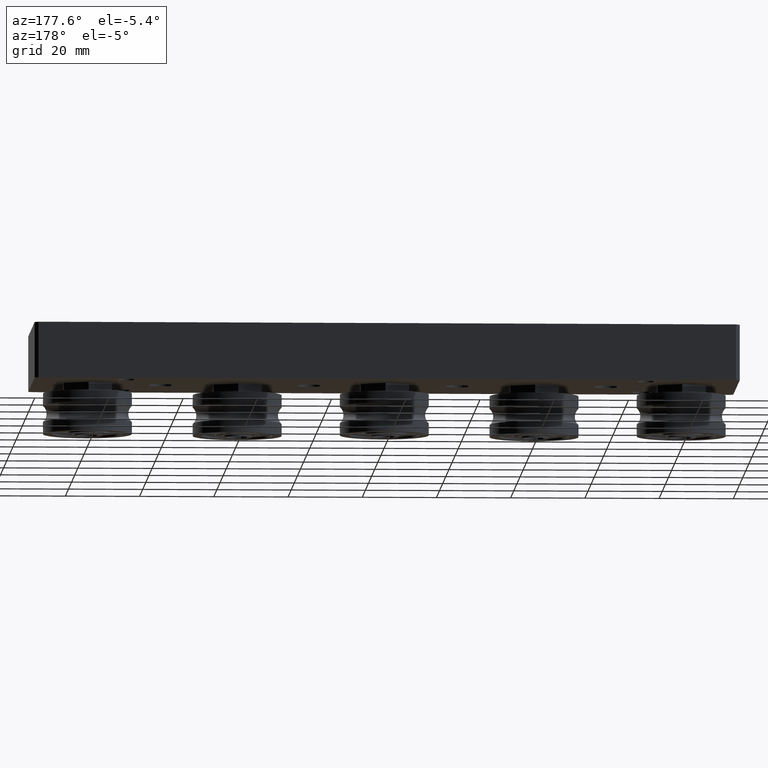
[diagram: clean part render]
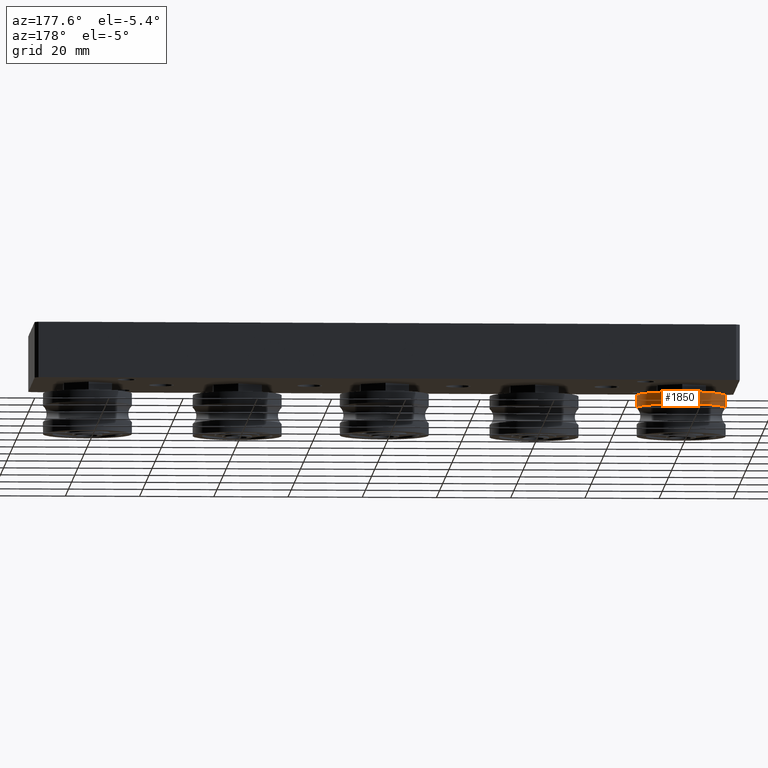
[diagram: same view with one face highlighted and labeled with its STEP entity id]
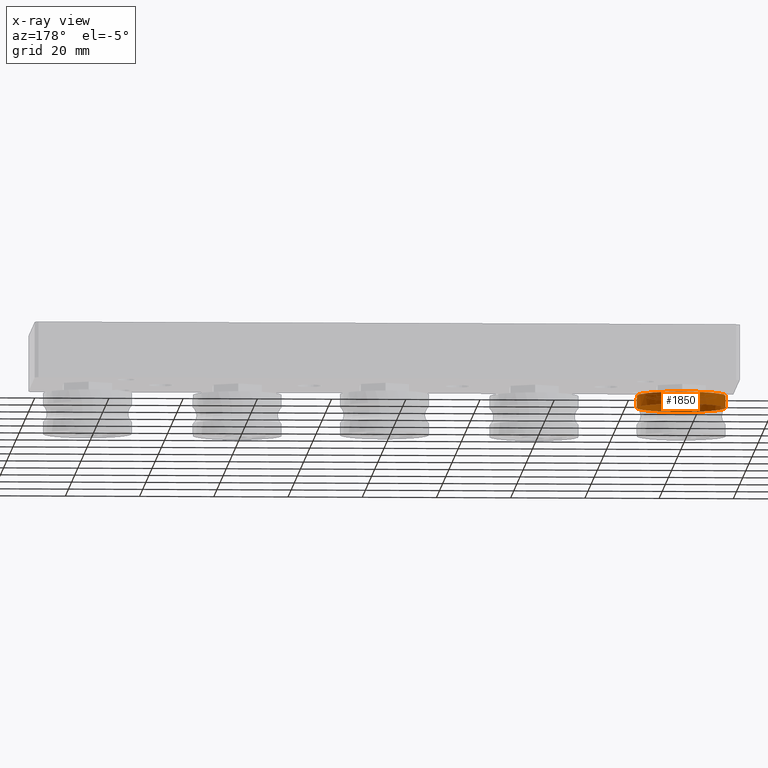
[diagram: x-ray of the same camera — body ghosted, the highlighted face saturated]
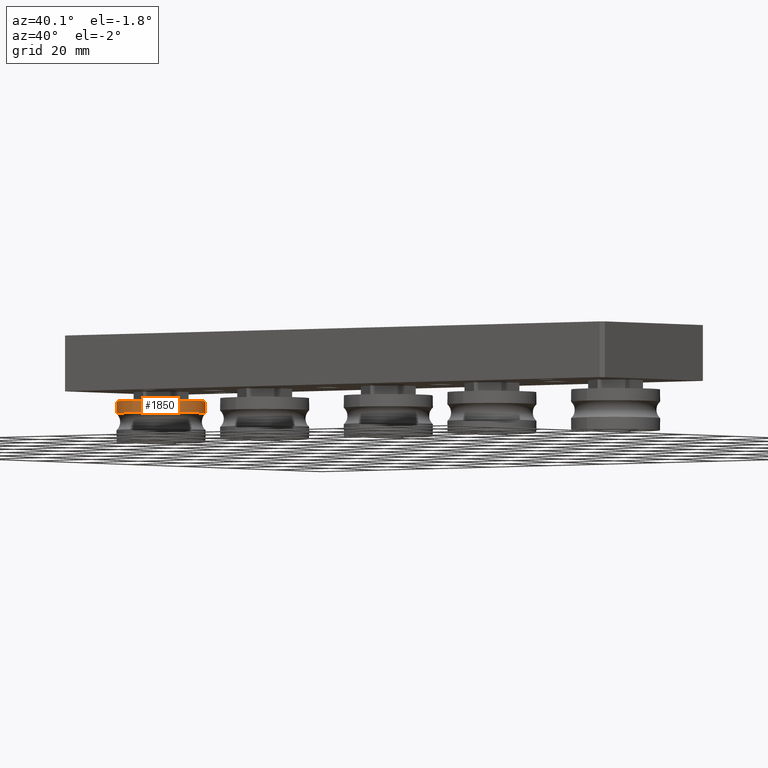
[diagram: same view with one face highlighted and labeled with its STEP entity id]
A machine part, auxiliary view. The second image highlights one B-rep face of the part: STEP entity #1850.
The next image is the same camera in x-ray: the body ghosted, the highlighted face saturated — about 19% of this face is hidden behind the body in this view.
A second angle (auxiliary view) of the same face is appended — the face is thin or edge-on in the first view.
In plain terms, the highlighted cylindrical surface (bore or boss wall) has radius 12 mm, axis along (-0, -0, 1).
Its self-contained STEP definition (entity closure, byte-faithful):
#173=CYLINDRICAL_SURFACE('',#2188,12.);
#312=CIRCLE('',#2186,12.);
#313=CIRCLE('',#2187,12.);
#314=CIRCLE('',#2189,12.);
#420=FACE_OUTER_BOUND('',#574,.T.);
#574=EDGE_LOOP('',(#1582,#1583,#1584,#1585,#1586));
#711=LINE('',#3268,#833);
#833=VECTOR('',#2677,12.);
#978=VERTEX_POINT('',#3260);
#979=VERTEX_POINT('',#3262);
#980=VERTEX_POINT('',#3266);
#1187=EDGE_CURVE('',#979,#978,#312,.T.);
#1188=EDGE_CURVE('',#978,#979,#313,.T.);
#1189=EDGE_CURVE('',#980,#980,#314,.T.);
#1190=EDGE_CURVE('',#980,#979,#711,.T.);
#1582=ORIENTED_EDGE('',*,*,#1189,.F.);
#1583=ORIENTED_EDGE('',*,*,#1190,.T.);
#1584=ORIENTED_EDGE('',*,*,#1187,.T.);
#1585=ORIENTED_EDGE('',*,*,#1188,.T.);
#1586=ORIENTED_EDGE('',*,*,#1190,.F.);
#1850=ADVANCED_FACE('',(#420),#173,.T.);
#2186=AXIS2_PLACEMENT_3D('',#3263,#2669,#2670);
#2187=AXIS2_PLACEMENT_3D('',#3264,#2671,#2672);
#2188=AXIS2_PLACEMENT_3D('',#3265,#2673,#2674);
#2189=AXIS2_PLACEMENT_3D('',#3267,#2675,#2676);
#2669=DIRECTION('center_axis',(1.,0.,0.));
#2670=DIRECTION('ref_axis',(0.,1.,0.));
#2671=DIRECTION('center_axis',(1.,0.,0.));
#2672=DIRECTION('ref_axis',(0.,1.,0.));
#2673=DIRECTION('center_axis',(1.,0.,0.));
#2674=DIRECTION('ref_axis',(0.,1.,0.));
#2675=DIRECTION('center_axis',(1.,0.,0.));
#2676=DIRECTION('ref_axis',(0.,1.,0.));
#2677=DIRECTION('',(-1.,0.,0.));
#3260=CARTESIAN_POINT('',(2.23606797749979,-1.46957615897682E-15,12.));
#3262=CARTESIAN_POINT('',(2.23606797749979,-12.,-1.46957615897682E-15));
#3263=CARTESIAN_POINT('Origin',(2.23606797749979,0.,0.));
#3264=CARTESIAN_POINT('Origin',(2.23606797749979,0.,0.));
#3265=CARTESIAN_POINT('Origin',(3.86803398874989,0.,0.));
#3266=CARTESIAN_POINT('',(5.5,-12.,-1.46957615897682E-15));
#3267=CARTESIAN_POINT('Origin',(5.5,0.,0.));
#3268=CARTESIAN_POINT('',(3.86803398874989,-12.,-1.46957615897682E-15));